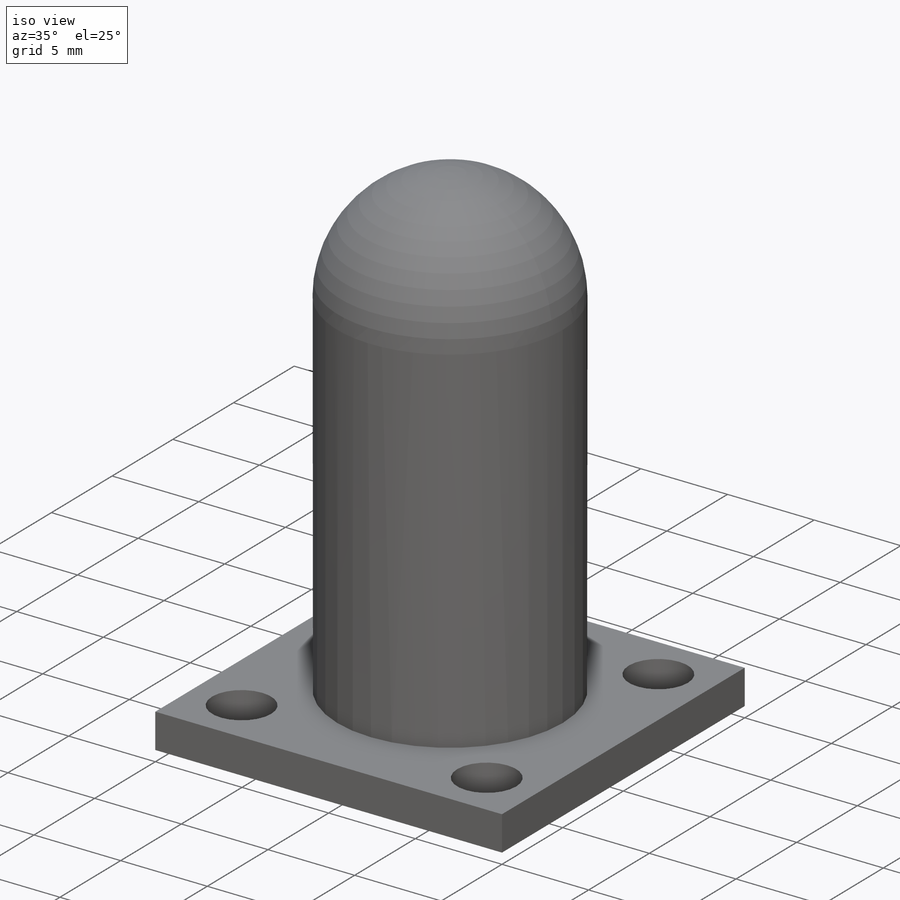
[diagram: iso view]
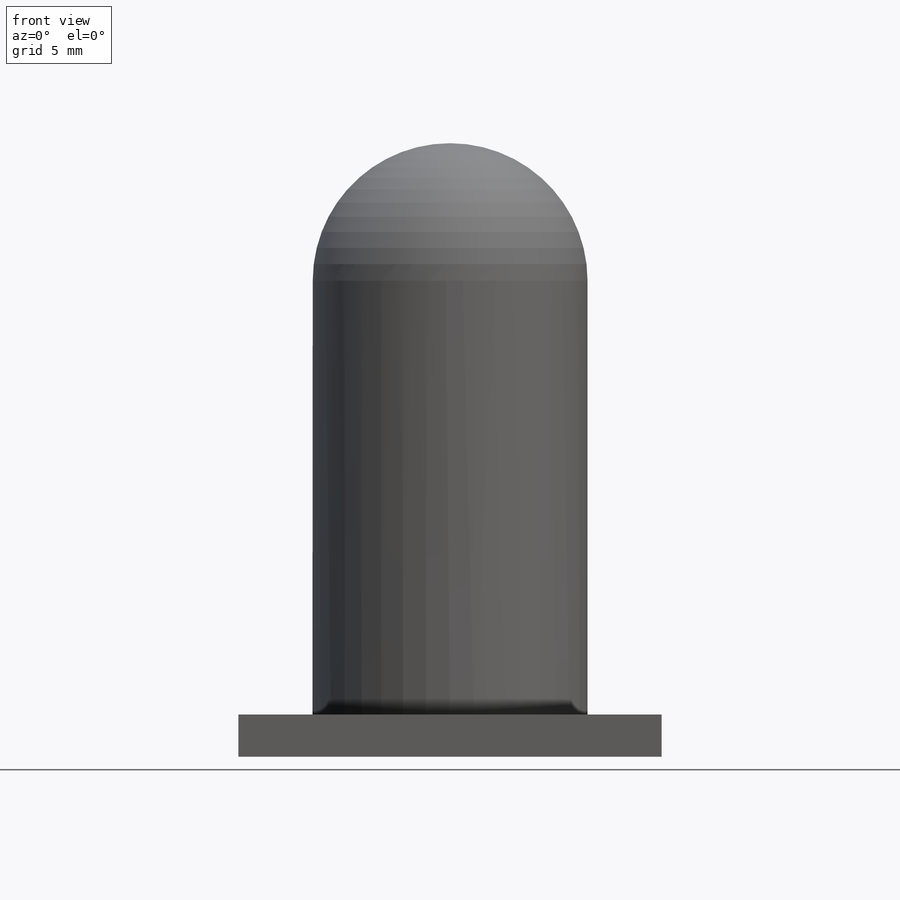
[diagram: front view]
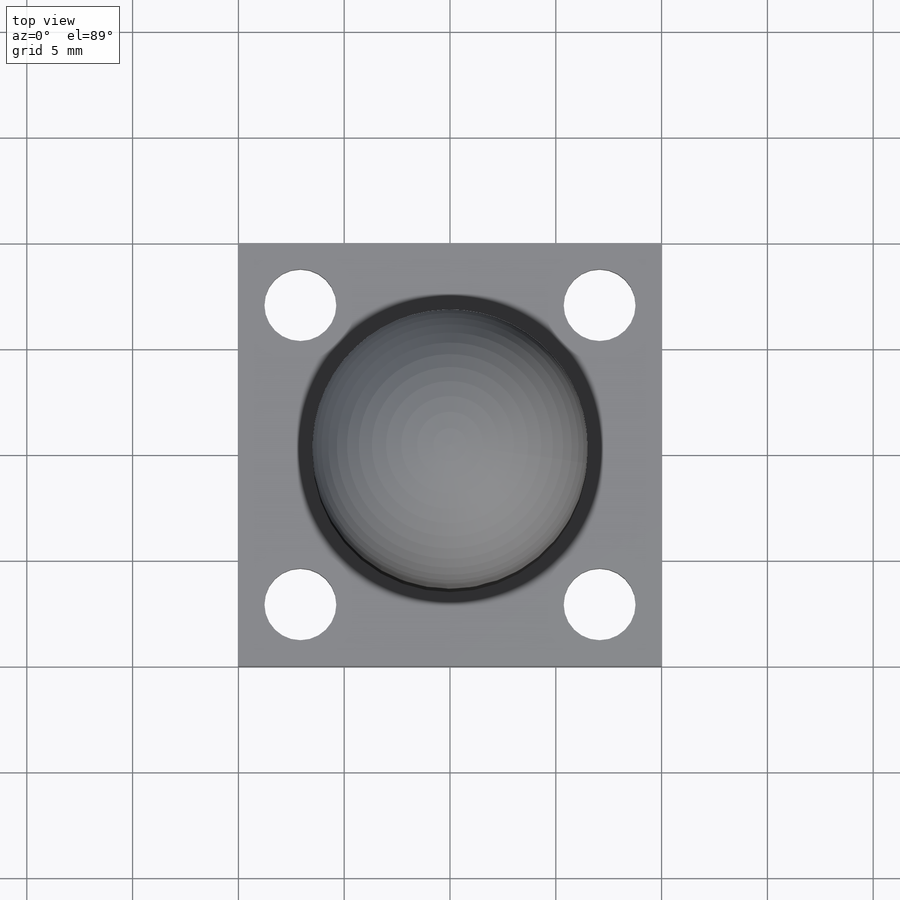
[diagram: top view]
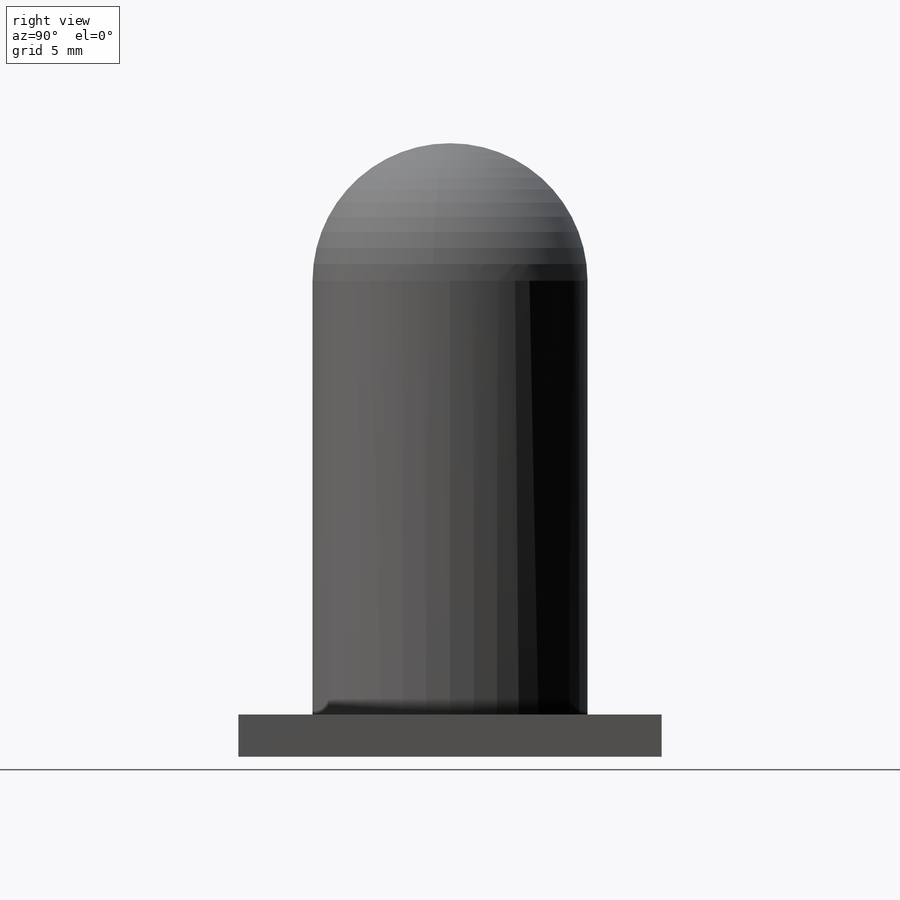
[diagram: right view]
SOLIDWORKS PART (.sldprt)
format: sldprt  version: not decoded by parser v0  size: 226,816 bytes
history: native  units: mm
features: sketch x5, plane x3, material x1, revolve x1, extrude x1, hole x1 (+8 scaffold rows collapsed)
feature tree (20):
  scaffold x8  (default folders/planes/origin — collapsed)
  material  "Matériau <non spécifié>"
  plane  "Plan de face"
  plane  "Plan de dessus"
  plane  "Plan de droite"
  sketch  "Esquisse2"  dims[c1.D4=~41.363799mm c1.D2=8.0mm c1.D1=2.5mm c2.D2=16.0mm c2.D3=4.0mm c2.D4=15.0mm c3.D2=27.0mm c3.D4=13.0mm c3.D5=20.0mm c3.D6=~2.692655mm c4.D4=21.0mm]
  revolve  "Révolution3"  Angle=360deg
  sketch  "Esquisse3"  dims[D1=20.0mm]
  extrude  "Boss.-Extru.1"  Depth=2mm
  sketch  "Esquisse4"  dims[D1=10.0mm]
  hole  "Dégagement M31"  Diameter=3.4mm Depth=3mm
  sketch  "Esquisse6"
  sketch  "Esquisse5"  dims[hole-wizard template sketch: 47 standard entries collapsed; hole parameters kept: c15.Profondeur du perçage=3.0mm c15.D3=~14.816244mm c15.Angle de pointe=118.0deg]
decode coverage: 7 of 8 modeling features carry decoded parameters
note: ~ marks probable driven/reference dimensions
note: suppression state not decoded; provenance and decode notes live in map.json
